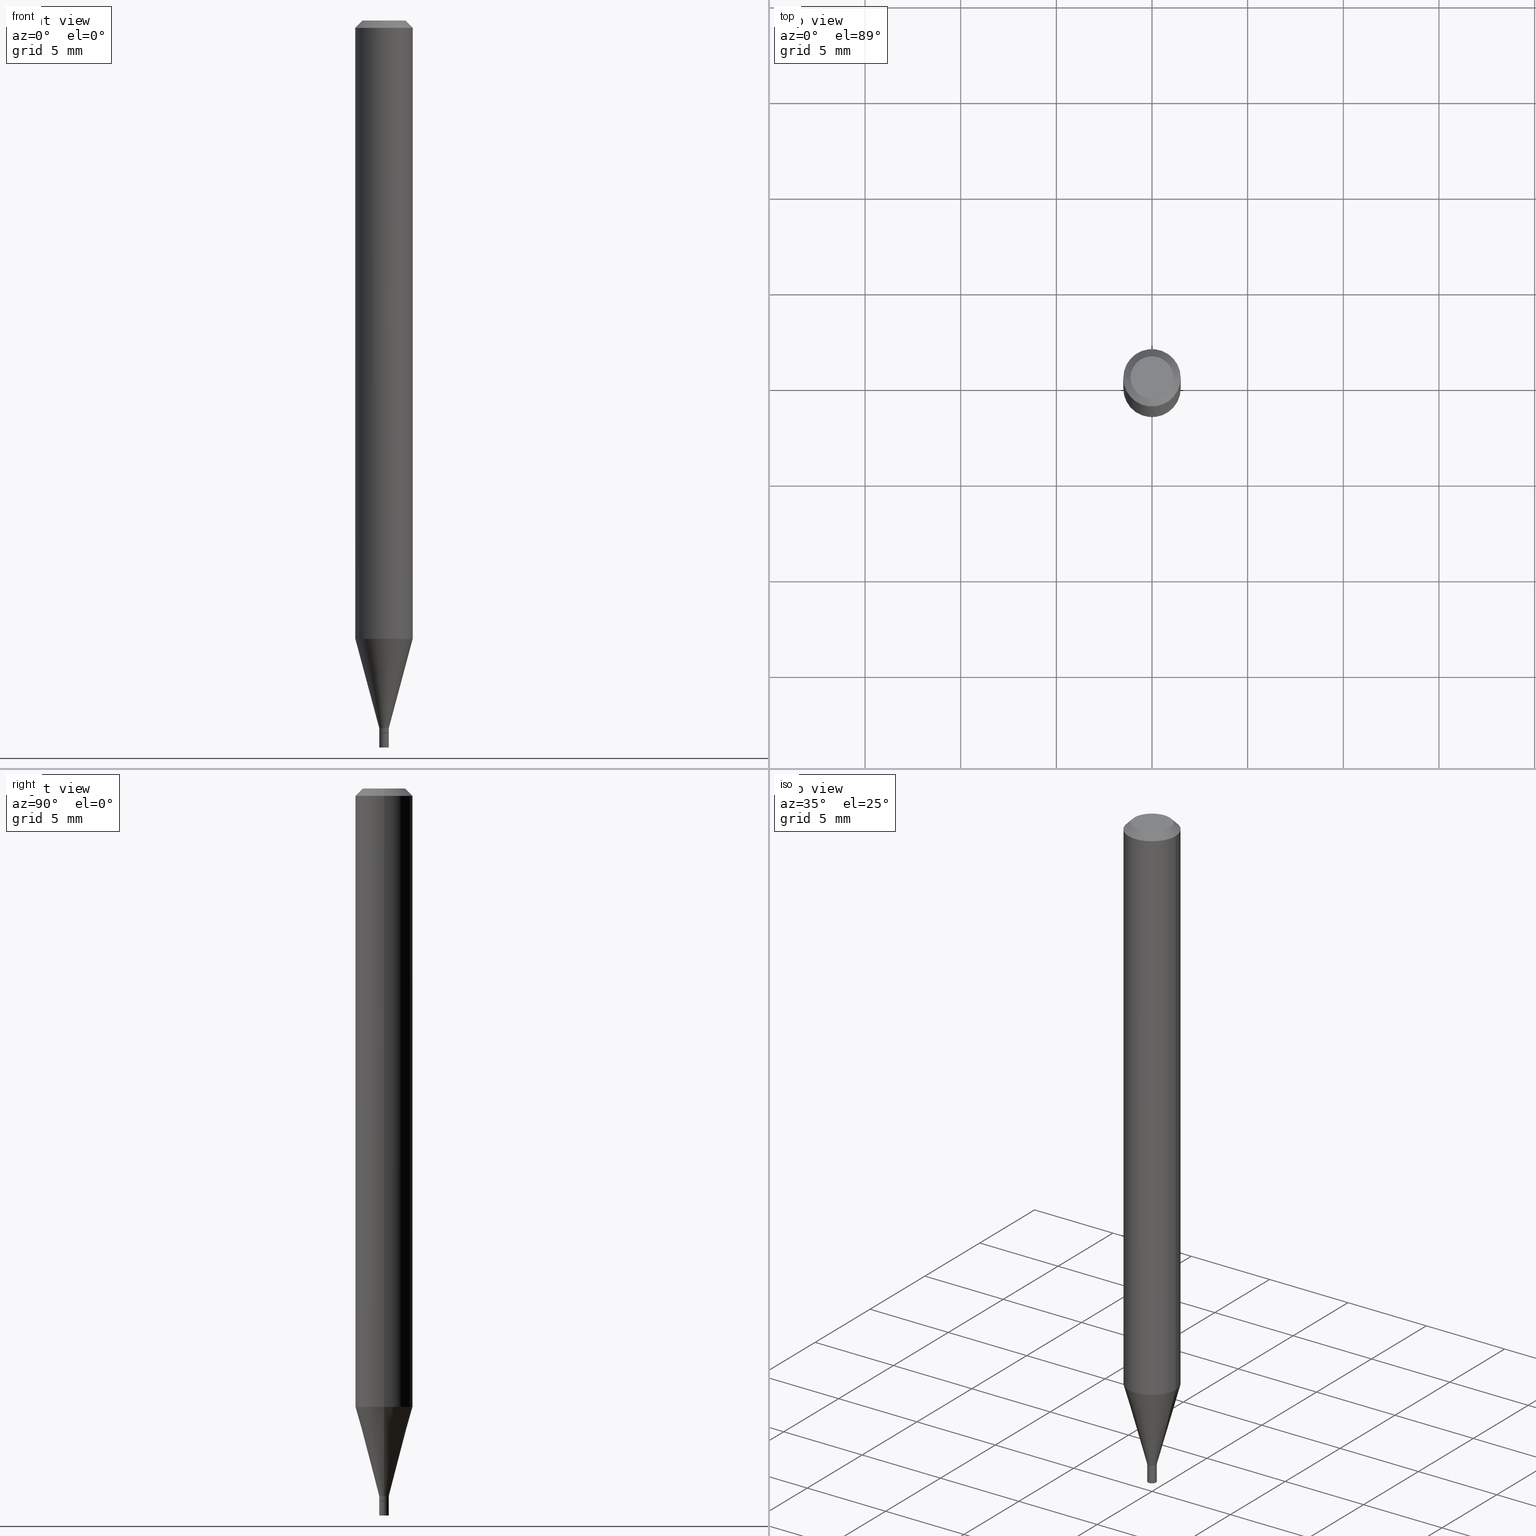
[diagram: canonical four-view strip — front | top / right | iso, engineering-drawing reading convention]
A machine part, canonical four-view strip (front | top / right | iso — engineering-drawing reading convention). The complete STEP part file that produces these views, byte-faithful:
ISO-10303-21;
HEADER;
FILE_DESCRIPTION (( 'STEP AP203' ),
    '1' );
FILE_NAME ('01804.STEP',
    '2024-03-20T01:25:20',
    ( '' ),
    ( '' ),
    'SwSTEP 2.0',
    'SolidWorks 2023',
    '' );
FILE_SCHEMA (( 'CONFIG_CONTROL_DESIGN' ));
ENDSEC;

DATA;
#1 = DIRECTION ( 'NONE',  ( -2.445468806185136597E-29, 3.491481338843145583E-15, 1.000000000000000000 ) ) ;
#2 = DIRECTION ( 'NONE',  ( -2.445468806185136597E-29, 3.491481338843145583E-15, 1.000000000000000000 ) ) ;
#3 = DIRECTION ( 'NONE',  ( 2.438088387897960049E-29, -3.491481338843145188E-15, -1.000000000000000000 ) ) ;
#4 = AXIS2_PLACEMENT_3D ( 'NONE', #145, #296, #348 ) ;
#5 = CC_DESIGN_SECURITY_CLASSIFICATION ( #21, ( #175 ) ) ;
#6 = CARTESIAN_POINT ( 'NONE',  ( 3.585301816748028874E-29, -5.118860790877935502E-15, -1.466099999999999959 ) ) ;
#7 = CARTESIAN_POINT ( 'NONE',  ( -0.009849999999999999381, 6.998845947236986391E-17, -4.845151063901081251E-31 ) ) ;
#8 = EDGE_CURVE ( 'NONE', #49, #388, #291, .T. ) ;
#9 = CARTESIAN_POINT ( 'NONE',  ( 0.05904999999999999832, -4.855194944695011199E-15, -1.272483100267611356 ) ) ;
#10 = ORIENTED_EDGE ( 'NONE', *, *, #57, .T. ) ;
#11 = CONICAL_SURFACE ( 'NONE', #284, 0.009349999999999998937, 0.7853981633974718157 ) ;
#12 = DIRECTION ( 'NONE',  ( -2.445468806185136597E-29, 3.491481338843145583E-15, 1.000000000000000000 ) ) ;
#13 = ORIENTED_EDGE ( 'NONE', *, *, #378, .F. ) ;
#14 = ADVANCED_FACE ( 'NONE', ( #106 ), #192, .T. ) ;
#15 = DIRECTION ( 'NONE',  ( -2.445468806185136597E-29, 3.491481338843145583E-15, 1.000000000000000000 ) ) ;
#16 = EDGE_LOOP ( 'NONE', ( #424, #60, #340, #282 ) ) ;
#17 = EDGE_CURVE ( 'NONE', #56, #173, #333, .T. ) ;
#18 = CARTESIAN_POINT ( 'NONE',  ( -0.05904999999999999832, 3.599717260347268549E-16, -0.01499999999999999944 ) ) ;
#19 = AXIS2_PLACEMENT_3D ( 'NONE', #417, #339, #88 ) ;
#20 = DIRECTION ( 'NONE',  ( -2.445468806185136597E-29, 3.491481338843145583E-15, 1.000000000000000000 ) ) ;
#21 = SECURITY_CLASSIFICATION ( '', '', #34 ) ;
#22 = DIMENSIONAL_EXPONENTS ( 1.000000000000000000, 0.000000000000000000, 0.000000000000000000, 0.000000000000000000, 0.000000000000000000, 0.000000000000000000, 0.000000000000000000 ) ;
#23 = DIRECTION ( 'NONE',  ( 1.000000000000000000, -6.982962677686229634E-15, 0.000000000000000000 ) ) ;
#24 = CC_DESIGN_PERSON_AND_ORGANIZATION_ASSIGNMENT ( #254, #442, ( #21 ) ) ;
#25 = FACE_OUTER_BOUND ( 'NONE', #278, .T. ) ;
#26 = ORIENTED_EDGE ( 'NONE', *, *, #314, .F. ) ;
#27 = CARTESIAN_POINT ( 'NONE',  ( 3.586524551151121115E-29, -5.120606531547357005E-15, -1.466599999999999904 ) ) ;
#28 = ORIENTED_EDGE ( 'NONE', *, *, #117, .T. ) ;
#29 = AXIS2_PLACEMENT_3D ( 'NONE', #457, #247, #395 ) ;
#30 = EDGE_LOOP ( 'NONE', ( #96, #272, #270, #66 ) ) ;
#31 = ADVANCED_FACE ( 'NONE', ( #171 ), #369, .T. ) ;
#32 = DIRECTION ( 'NONE',  ( -2.445468806185136597E-29, 3.491481338843145583E-15, 1.000000000000000000 ) ) ;
#33 = MANIFOLD_SOLID_BREP ( 'Body-Move/Copy2[2]', #359 ) ;
#34 = SECURITY_CLASSIFICATION_LEVEL ( 'unclassified' ) ;
#35 = CARTESIAN_POINT ( 'NONE',  ( 0.000000000000000000, 0.000000000000000000, 0.000000000000000000 ) ) ;
#36 = ADVANCED_FACE ( 'NONE', ( #38 ), #87, .T. ) ;
#37 = CIRCLE ( 'NONE', #433, 0.04404999999999999888 ) ;
#38 = FACE_OUTER_BOUND ( 'NONE', #464, .T. ) ;
#39 = APPROVAL ( #262, 'UNSPECIFIED' ) ;
#40 = PRODUCT_DEFINITION_SHAPE ( 'NONE', 'NONE',  #260 ) ;
#41 = CARTESIAN_POINT ( 'NONE',  ( -0.05904999999999999832, -4.023275513111297575E-15, -1.272483100267611356 ) ) ;
#42 = PERSON_AND_ORGANIZATION ( #305, #142 ) ;
#43 = CARTESIAN_POINT ( 'NONE',  ( 3.075995059520799729E-16, 0.04404999999999999888, 1.795592642476908520E-18 ) ) ;
#44 = AXIS2_PLACEMENT_3D ( 'NONE', #445, #1, #116 ) ;
#45 = CIRCLE ( 'NONE', #335, 0.009349999999999998937 ) ;
#46 = CARTESIAN_POINT ( 'NONE',  ( 0.009849999999999999381, -5.292387413418439267E-15, -1.496099999999999985 ) ) ;
#47 = CARTESIAN_POINT ( 'NONE',  ( 3.560847128686176768E-29, -5.083945977489503852E-15, -1.456099999999999728 ) ) ;
#48 = PLANE ( 'NONE',  #19 ) ;
#49 = VERTEX_POINT ( 'NONE', #41 ) ;
#50 = DIRECTION ( 'NONE',  ( -2.445468806185136597E-29, 3.491481338843145583E-15, 1.000000000000000000 ) ) ;
#51 = CC_DESIGN_PERSON_AND_ORGANIZATION_ASSIGNMENT ( #438, #322, ( #260 ) ) ;
#52 = CARTESIAN_POINT ( 'NONE',  ( 0.000000000000000000, 0.000000000000000000, 0.000000000000000000 ) ) ;
#53 = ORIENTED_EDGE ( 'NONE', *, *, #337, .T. ) ;
#54 = CARTESIAN_POINT ( 'NONE',  ( 0.05904999999999999832, -4.574846268510561447E-16, -0.01499999999999999944 ) ) ;
#55 = ADVANCED_BREP_SHAPE_REPRESENTATION ( '01804', ( #351, #33, #374 ), #425 ) ;
#56 = VERTEX_POINT ( 'NONE', #46 ) ;
#57 = EDGE_CURVE ( 'NONE', #105, #462, #214, .T. ) ;
#58 = FACE_OUTER_BOUND ( 'NONE', #134, .T. ) ;
#59 = AXIS2_PLACEMENT_3D ( 'NONE', #392, #352, #65 ) ;
#60 = ORIENTED_EDGE ( 'NONE', *, *, #345, .T. ) ;
#61 = MECHANICAL_CONTEXT ( 'NONE', #264, 'mechanical' ) ;
#62 = ORIENTED_EDGE ( 'NONE', *, *, #356, .T. ) ;
#63 = CARTESIAN_POINT ( 'NONE',  ( 0.04404999999999999888, -3.798447818264454656E-16, 3.111906912370373467E-16 ) ) ;
#64 = ORIENTED_EDGE ( 'NONE', *, *, #314, .T. ) ;
#65 = DIRECTION ( 'NONE',  ( 1.000000000000000000, -6.982962677686266711E-15, 0.000000000000000000 ) ) ;
#66 = ORIENTED_EDGE ( 'NONE', *, *, #253, .F. ) ;
#67 = ADVANCED_FACE ( 'NONE', ( #407 ), #372, .T. ) ;
#68 = ORIENTED_EDGE ( 'NONE', *, *, #102, .F. ) ;
#69 = APPROVAL_STATUS ( 'not_yet_approved' ) ;
#70 = CARTESIAN_POINT ( 'NONE',  ( -0.009849999999999999381, -5.102117421822923284E-15, -1.466599999999999904 ) ) ;
#71 = EDGE_CURVE ( 'NONE', #197, #399, #114, .T. ) ;
#72 = CARTESIAN_POINT ( 'NONE',  ( 3.668203209277705088E-31, -5.237222008264718399E-17, -0.01499999999999999944 ) ) ;
#73 = COORDINATED_UNIVERSAL_TIME_OFFSET ( 5, 0, .BEHIND. ) ;
#74 = CARTESIAN_POINT ( 'NONE',  ( -0.009349999999999998937, -5.054170785753787855E-15, -1.466599999999999904 ) ) ;
#75 = APPROVAL_DATE_TIME ( #408, #328 ) ;
#76 = CARTESIAN_POINT ( 'NONE',  ( 3.658665880933582389E-29, -5.223605231043229660E-15, -1.496099999999999985 ) ) ;
#77 = CARTESIAN_POINT ( 'NONE',  ( 0.009849999999999924788, -5.152728159864713460E-15, -1.456099999999999728 ) ) ;
#78 = AXIS2_PLACEMENT_3D ( 'NONE', #72, #301, #223 ) ;
#79 = LOCAL_TIME ( 21, 25, 20.00000000000000000, #73 ) ;
#80 = CC_DESIGN_PERSON_AND_ORGANIZATION_ASSIGNMENT ( #131, #241, ( #236 ) ) ;
#81 = LINE ( 'NONE', #231, #360 ) ;
#82 = ADVANCED_FACE ( 'NONE', ( #224 ), #258, .T. ) ;
#83 = CARTESIAN_POINT ( 'NONE',  ( 3.585301816748028874E-29, -5.118860790877935502E-15, -1.466099999999999959 ) ) ;
#84 = EDGE_LOOP ( 'NONE', ( #363, #216 ) ) ;
#85 = CARTESIAN_POINT ( 'NONE',  ( -0.05904999999999999832, 4.195754854663391478E-16, -2.904631170795521892E-30 ) ) ;
#86 = EDGE_CURVE ( 'NONE', #173, #56, #412, .T. ) ;
#87 = CONICAL_SURFACE ( 'NONE', #276, 0.009849999999999924788, 0.2617993877991501850 ) ;
#88 = DIRECTION ( 'NONE',  ( -1.000000000000000000, 6.982962677686265922E-15, -4.876176775795935793E-29 ) ) ;
#89 = DIRECTION ( 'NONE',  ( -2.445468806185136597E-29, 3.491481338843145583E-15, 1.000000000000000000 ) ) ;
#90 = VERTEX_POINT ( 'NONE', #70 ) ;
#91 = ADVANCED_FACE ( 'NONE', ( #185 ), #150, .T. ) ;
#92 = PLANE ( 'NONE',  #120 ) ;
#93 = VERTEX_POINT ( 'NONE', #109 ) ;
#94 = CIRCLE ( 'NONE', #368, 0.05904999999999999832 ) ;
#95 = LENGTH_MEASURE_WITH_UNIT ( LENGTH_MEASURE( 0.02539999999999999897 ), #289 );
#96 = ORIENTED_EDGE ( 'NONE', *, *, #230, .F. ) ;
#97 = LINE ( 'NONE', #245, #151 ) ;
#98 = ADVANCED_FACE ( 'NONE', ( #411 ), #147, .F. ) ;
#99 = ORIENTED_EDGE ( 'NONE', *, *, #152, .T. ) ;
#100 = DIRECTION ( 'NONE',  ( 1.000000000000000000, -6.982962677686229634E-15, 0.000000000000000000 ) ) ;
#101 = ORIENTED_EDGE ( 'NONE', *, *, #158, .F. ) ;
#102 = EDGE_CURVE ( 'NONE', #210, #132, #444, .T. ) ;
#103 = DIRECTION ( 'NONE',  ( 1.000000000000000000, 0.000000000000000000, 0.000000000000000000 ) ) ;
#104 = AXIS2_PLACEMENT_3D ( 'NONE', #317, #32, #435 ) ;
#105 = VERTEX_POINT ( 'NONE', #336 ) ;
#106 = FACE_OUTER_BOUND ( 'NONE', #204, .T. ) ;
#107 = CC_DESIGN_PERSON_AND_ORGANIZATION_ASSIGNMENT ( #144, #329, ( #175 ) ) ;
#108 = COORDINATED_UNIVERSAL_TIME_OFFSET ( 5, 0, .BEHIND. ) ;
#109 = CARTESIAN_POINT ( 'NONE',  ( 0.009849999999999924788, -5.152728159864713460E-15, -1.456099999999999728 ) ) ;
#110 = DIRECTION ( 'NONE',  ( -0.7071067811865642261, 7.493145998870414114E-15, 0.7071067811865309194 ) ) ;
#111 = AXIS2_PLACEMENT_3D ( 'NONE', #248, #461, #179 ) ;
#112 = AXIS2_PLACEMENT_3D ( 'NONE', #313, #15, #266 ) ;
#113 = APPROVAL_ROLE ( '' ) ;
#114 = LINE ( 'NONE', #74, #466 ) ;
#115 = APPROVAL_ROLE ( '' ) ;
#116 = DIRECTION ( 'NONE',  ( 1.000000000000000000, -6.982962677686276177E-15, 0.000000000000000000 ) ) ;
#117 = EDGE_CURVE ( 'NONE', #132, #399, #454, .T. ) ;
#118 = DIRECTION ( 'NONE',  ( 1.000000000000000000, -6.982962677686276177E-15, 0.000000000000000000 ) ) ;
#119 = AXIS2_PLACEMENT_3D ( 'NONE', #321, #353, #23 ) ;
#120 = AXIS2_PLACEMENT_3D ( 'NONE', #243, #170, #387 ) ;
#121 = EDGE_CURVE ( 'NONE', #210, #197, #249, .T. ) ;
#122 = FACE_OUTER_BOUND ( 'NONE', #211, .T. ) ;
#123 = EDGE_CURVE ( 'NONE', #93, #388, #265, .T. ) ;
#124 = CARTESIAN_POINT ( 'NONE',  ( 0.009349999999999998937, -5.185897232583723605E-15, -1.466599999999999904 ) ) ;
#125 = ORIENTED_EDGE ( 'NONE', *, *, #152, .F. ) ;
#126 = FACE_OUTER_BOUND ( 'NONE', #201, .T. ) ;
#127 = ORIENTED_EDGE ( 'NONE', *, *, #117, .F. ) ;
#128 = AXIS2_PLACEMENT_3D ( 'NONE', #362, #172, #100 ) ;
#129 = CARTESIAN_POINT ( 'NONE',  ( 0.05904999999999999832, -4.647161662000212105E-16, -0.01499999999999999944 ) ) ;
#130 = ORIENTED_EDGE ( 'NONE', *, *, #123, .F. ) ;
#131 = PERSON_AND_ORGANIZATION ( #305, #142 ) ;
#132 = VERTEX_POINT ( 'NONE', #375 ) ;
#133 = EDGE_CURVE ( 'NONE', #173, #90, #220, .T. ) ;
#134 = EDGE_LOOP ( 'NONE', ( #28, #391, #169, #13 ) ) ;
#135 = AXIS2_PLACEMENT_3D ( 'NONE', #47, #89, #239 ) ;
#136 = ORIENTED_EDGE ( 'NONE', *, *, #123, .T. ) ;
#137 = ORIENTED_EDGE ( 'NONE', *, *, #186, .T. ) ;
#138 = APPLICATION_PROTOCOL_DEFINITION ( 'international standard', 'config_control_design', 1994, #264 ) ;
#139 = VERTEX_POINT ( 'NONE', #154 ) ;
#140 = DATE_TIME_ROLE ( 'classification_date' ) ;
#141 = ORIENTED_EDGE ( 'NONE', *, *, #86, .T. ) ;
#142 = ORGANIZATION ( 'UNSPECIFIED', 'UNSPECIFIED', '' ) ;
#143 = ADVANCED_FACE ( 'NONE', ( #304 ), #446, .T. ) ;
#144 = PERSON_AND_ORGANIZATION ( #305, #142 ) ;
#145 = CARTESIAN_POINT ( 'NONE',  ( 3.560847128686176768E-29, -5.083945977489503852E-15, -1.456099999999999728 ) ) ;
#146 = COORDINATED_UNIVERSAL_TIME_OFFSET ( 5, 0, .BEHIND. ) ;
#147 = PLANE ( 'NONE',  #324 ) ;
#148 = DATE_AND_TIME ( #187, #418 ) ;
#149 = DIRECTION ( 'NONE',  ( -1.000000000000000000, 6.982962677686265922E-15, -4.876176775795935793E-29 ) ) ;
#150 = CONICAL_SURFACE ( 'NONE', #397, 0.009849999999999924788, 0.2617993877991501850 ) ;
#151 = VECTOR ( 'NONE', #209, 39.37007874015748143 ) ;
#152 = EDGE_CURVE ( 'NONE', #139, #93, #380, .T. ) ;
#153 = DIRECTION ( 'NONE',  ( -2.445468806185136597E-29, 3.491481338843145583E-15, 1.000000000000000000 ) ) ;
#154 = CARTESIAN_POINT ( 'NONE',  ( -0.009849999999999924788, -4.518616515564216084E-15, -1.456099999999999728 ) ) ;
#155 = LINE ( 'NONE', #85, #307 ) ;
#156 = EDGE_LOOP ( 'NONE', ( #428, #141, #344, #431 ) ) ;
#157 = VECTOR ( 'NONE', #234, 39.37007874015748143 ) ;
#158 = EDGE_CURVE ( 'NONE', #139, #49, #455, .T. ) ;
#159 = VECTOR ( 'NONE', #167, 39.37007874015748143 ) ;
#160 = DIRECTION ( 'NONE',  ( 1.000000000000000000, -6.982962677686276177E-15, 0.000000000000000000 ) ) ;
#161 = ORIENTED_EDGE ( 'NONE', *, *, #133, .T. ) ;
#162 = CARTESIAN_POINT ( 'NONE',  ( -0.009349999999999998937, -5.051521558579676654E-15, -1.466599999999999904 ) ) ;
#163 = ORIENTED_EDGE ( 'NONE', *, *, #71, .F. ) ;
#164 = CYLINDRICAL_SURFACE ( 'NONE', #440, 0.009849999999999999381 ) ;
#165 = VECTOR ( 'NONE', #273, 39.37007874015748143 ) ;
#166 = LOCAL_TIME ( 21, 25, 20.00000000000000000, #108 ) ;
#167 = DIRECTION ( 'NONE',  ( 0.7071067811865402453, -7.319954787623232380E-15, -0.7071067811865547892 ) ) ;
#168 = EDGE_CURVE ( 'NONE', #105, #420, #306, .T. ) ;
#169 = ORIENTED_EDGE ( 'NONE', *, *, #280, .F. ) ;
#170 = DIRECTION ( 'NONE',  ( -2.438088387897960049E-29, 3.491481338843145188E-15, 1.000000000000000000 ) ) ;
#171 = FACE_OUTER_BOUND ( 'NONE', #288, .T. ) ;
#172 = DIRECTION ( 'NONE',  ( -2.445468806185136597E-29, 3.491481338843145583E-15, 1.000000000000000000 ) ) ;
#173 = VERTEX_POINT ( 'NONE', #237 ) ;
#174 = CIRCLE ( 'NONE', #350, 0.009849999999999999381 ) ;
#175 = PRODUCT_DEFINITION_FORMATION_WITH_SPECIFIED_SOURCE ( 'ANY', '', #236, .NOT_KNOWN. ) ;
#176 = CYLINDRICAL_SURFACE ( 'NONE', #449, 0.009849999999999921318 ) ;
#177 = VERTEX_POINT ( 'NONE', #129 ) ;
#178 =( CONVERSION_BASED_UNIT ( 'INCH', #95 ) LENGTH_UNIT ( ) NAMED_UNIT ( #22 ) );
#179 = DIRECTION ( 'NONE',  ( -1.000000000000000000, 6.982962677686266711E-15, 0.000000000000000000 ) ) ;
#180 = CARTESIAN_POINT ( 'NONE',  ( 0.009849999999999999381, -5.189388713922566612E-15, -1.466599999999999904 ) ) ;
#181 = ORIENTED_EDGE ( 'NONE', *, *, #456, .F. ) ;
#182 = AXIS2_PLACEMENT_3D ( 'NONE', #188, #194, #439 ) ;
#183 = DIRECTION ( 'NONE',  ( 1.000000000000000000, -6.982962677686266711E-15, 4.876176775795936353E-29 ) ) ;
#184 = CC_DESIGN_APPROVAL ( #39, ( #260 ) ) ;
#185 = FACE_OUTER_BOUND ( 'NONE', #458, .T. ) ;
#186 = EDGE_CURVE ( 'NONE', #90, #396, #174, .T. ) ;
#187 = CALENDAR_DATE ( 2024, 19, 3 ) ;
#188 = CARTESIAN_POINT ( 'NONE',  ( -7.610071281953593191E-45, 1.086516491275806664E-30, 3.111906912370349308E-16 ) ) ;
#189 = ADVANCED_FACE ( 'NONE', ( #450 ), #164, .T. ) ;
#190 = SHAPE_DEFINITION_REPRESENTATION ( #40, #55 ) ;
#191 = CARTESIAN_POINT ( 'NONE',  ( 0.009349999999999998937, -5.185897232583723605E-15, -1.466599999999999904 ) ) ;
#192 = CONICAL_SURFACE ( 'NONE', #111, 0.05904999999999999832, 0.7853981633974380649 ) ;
#193 = CONICAL_SURFACE ( 'NONE', #343, 0.009349999999999998937, 0.7853981633974718157 ) ;
#194 = DIRECTION ( 'NONE',  ( -2.445468806185136597E-29, 3.491481338843145583E-15, 1.000000000000000000 ) ) ;
#195 = CARTESIAN_POINT ( 'NONE',  ( 3.577647911566500614E-29, -5.339627574433336753E-15, -1.496099999999999985 ) ) ;
#196 = EDGE_CURVE ( 'NONE', #462, #105, #37, .T. ) ;
#197 = VERTEX_POINT ( 'NONE', #162 ) ;
#198 = DIRECTION ( 'NONE',  ( 1.000000000000000000, -6.982962677686265922E-15, 4.876176775795935232E-29 ) ) ;
#199 = AXIS2_PLACEMENT_3D ( 'NONE', #409, #2, #299 ) ;
#200 = LINE ( 'NONE', #54, #159 ) ;
#201 = EDGE_LOOP ( 'NONE', ( #275, #137 ) ) ;
#202 = ADVANCED_FACE ( 'NONE', ( #232 ), #452, .F. ) ;
#203 = CARTESIAN_POINT ( 'NONE',  ( 3.586524551151121115E-29, -5.120606531547357005E-15, -1.466599999999999904 ) ) ;
#204 = EDGE_LOOP ( 'NONE', ( #252, #244, #422, #246 ) ) ;
#205 = EDGE_CURVE ( 'NONE', #388, #177, #349, .T. ) ;
#206 = DIRECTION ( 'NONE',  ( -0.7071067811865402453, 2.468850131082180541E-15, -0.7071067811865547892 ) ) ;
#207 = AXIS2_PLACEMENT_3D ( 'NONE', #263, #370, #183 ) ;
#208 = APPROVAL_PERSON_ORGANIZATION ( #295, #328, #115 ) ;
#209 = DIRECTION ( 'NONE',  ( -2.445468806185136877E-29, 3.491481338843145188E-15, 1.000000000000000000 ) ) ;
#210 = VERTEX_POINT ( 'NONE', #124 ) ;
#211 = EDGE_LOOP ( 'NONE', ( #384, #320, #127, #68 ) ) ;
#212 =( NAMED_UNIT ( * ) PLANE_ANGLE_UNIT ( ) SI_UNIT ( $, .RADIAN. ) );
#213 = ORIENTED_EDGE ( 'NONE', *, *, #378, .T. ) ;
#214 = CIRCLE ( 'NONE', #182, 0.04404999999999999888 ) ;
#215 = CC_DESIGN_APPROVAL ( #242, ( #21 ) ) ;
#216 = ORIENTED_EDGE ( 'NONE', *, *, #337, .F. ) ;
#217 =( NAMED_UNIT ( * ) SI_UNIT ( $, .STERADIAN. ) SOLID_ANGLE_UNIT ( ) );
#218 = ORIENTED_EDGE ( 'NONE', *, *, #459, .F. ) ;
#219 = DATE_AND_TIME ( #259, #79 ) ;
#220 = LINE ( 'NONE', #7, #448 ) ;
#221 = DATE_AND_TIME ( #331, #166 ) ;
#222 = CIRCLE ( 'NONE', #135, 0.009849999999999924788 ) ;
#223 = DIRECTION ( 'NONE',  ( -1.000000000000000000, 6.982962677686266711E-15, 0.000000000000000000 ) ) ;
#224 = FACE_OUTER_BOUND ( 'NONE', #16, .T. ) ;
#225 = APPROVAL_ROLE ( '' ) ;
#226 = CARTESIAN_POINT ( 'NONE',  ( 3.560847128686176768E-29, -5.083945977489503852E-15, -1.456099999999999728 ) ) ;
#227 = DIRECTION ( 'NONE',  ( 0.2588190451025214611, 1.565188264969620982E-15, 0.9659258262890679791 ) ) ;
#228 = AXIS2_PLACEMENT_3D ( 'NONE', #195, #309, #451 ) ;
#229 = CC_DESIGN_APPROVAL ( #328, ( #175 ) ) ;
#230 = EDGE_CURVE ( 'NONE', #49, #420, #155, .T. ) ;
#231 = CARTESIAN_POINT ( 'NONE',  ( 0.009849999999999921318, -6.878218237520917578E-17, 4.803034124158958949E-31 ) ) ;
#232 = FACE_OUTER_BOUND ( 'NONE', #290, .T. ) ;
#233 = EDGE_LOOP ( 'NONE', ( #218, #64, #213, #125 ) ) ;
#234 = DIRECTION ( 'NONE',  ( -2.445468806185136877E-29, 3.491481338843145188E-15, 1.000000000000000000 ) ) ;
#235 = CIRCLE ( 'NONE', #128, 0.009849999999999999381 ) ;
#236 = PRODUCT ( '01804', '01804', '', ( #61 ) ) ;
#237 = CARTESIAN_POINT ( 'NONE',  ( -0.009849999999999999381, -5.102117421822923284E-15, -1.496099999999999985 ) ) ;
#238 = ADVANCED_FACE ( 'NONE', ( #126 ), #48, .F. ) ;
#239 = DIRECTION ( 'NONE',  ( 1.000000000000000000, -6.982962677686282488E-15, 0.000000000000000000 ) ) ;
#240 = ORIENTED_EDGE ( 'NONE', *, *, #158, .T. ) ;
#241 = PERSON_AND_ORGANIZATION_ROLE ( 'design_owner' ) ;
#242 = APPROVAL ( #69, 'UNSPECIFIED' ) ;
#243 = CARTESIAN_POINT ( 'NONE',  ( 3.586524551151121115E-29, -5.120606531547357005E-15, -1.466599999999999904 ) ) ;
#244 = ORIENTED_EDGE ( 'NONE', *, *, #57, .F. ) ;
#245 = CARTESIAN_POINT ( 'NONE',  ( 0.009849999999999999381, -6.878218237520971813E-17, 4.803034124158995733E-31 ) ) ;
#246 = ORIENTED_EDGE ( 'NONE', *, *, #253, .T. ) ;
#247 = DIRECTION ( 'NONE',  ( -2.445468806185136597E-29, 3.491481338843145583E-15, 1.000000000000000000 ) ) ;
#248 = CARTESIAN_POINT ( 'NONE',  ( 3.668203209277705088E-31, -5.237222008264718399E-17, -0.01499999999999999944 ) ) ;
#249 = CIRCLE ( 'NONE', #44, 0.009349999999999998937 ) ;
#250 = VECTOR ( 'NONE', #357, 39.37007874015748143 ) ;
#251 = DIRECTION ( 'NONE',  ( -2.445468806185136597E-29, 3.491481338843145583E-15, 1.000000000000000000 ) ) ;
#252 = ORIENTED_EDGE ( 'NONE', *, *, #345, .F. ) ;
#253 = EDGE_CURVE ( 'NONE', #420, #177, #94, .T. ) ;
#254 = PERSON_AND_ORGANIZATION ( #305, #142 ) ;
#255 = DIRECTION ( 'NONE',  ( -2.445468806185136597E-29, 3.491481338843145583E-15, 1.000000000000000000 ) ) ;
#256 = CALENDAR_DATE ( 2024, 19, 3 ) ;
#257 = DIRECTION ( 'NONE',  ( 1.000000000000000000, -6.982962677686282488E-15, 0.000000000000000000 ) ) ;
#258 = CONICAL_SURFACE ( 'NONE', #78, 0.05904999999999999832, 0.7853981633974380649 ) ;
#259 = CALENDAR_DATE ( 2024, 19, 3 ) ;
#260 = PRODUCT_DEFINITION ( 'UNKNOWN', '', #175, #361 ) ;
#261 = DIRECTION ( 'NONE',  ( -2.445468806185136597E-29, 3.491481338843145583E-15, 1.000000000000000000 ) ) ;
#262 = APPROVAL_STATUS ( 'not_yet_approved' ) ;
#263 = CARTESIAN_POINT ( 'NONE',  ( 0.000000000000000000, 0.000000000000000000, 0.000000000000000000 ) ) ;
#264 = APPLICATION_CONTEXT ( 'configuration controlled 3d designs of mechanical parts and assemblies' ) ;
#265 = LINE ( 'NONE', #77, #389 ) ;
#266 = DIRECTION ( 'NONE',  ( 1.000000000000000000, -6.982962677686273021E-15, 0.000000000000000000 ) ) ;
#267 = AXIS2_PLACEMENT_3D ( 'NONE', #76, #332, #327 ) ;
#268 = CIRCLE ( 'NONE', #59, 0.05904999999999999832 ) ;
#269 = CARTESIAN_POINT ( 'NONE',  ( 0.05904999999999999832, -4.123439461173740327E-16, 2.879382386107500220E-30 ) ) ;
#270 = ORIENTED_EDGE ( 'NONE', *, *, #205, .T. ) ;
#271 = CARTESIAN_POINT ( 'NONE',  ( -0.009849999999999924788, -5.013957518017134593E-15, -1.456099999999999728 ) ) ;
#272 = ORIENTED_EDGE ( 'NONE', *, *, #8, .T. ) ;
#273 = DIRECTION ( 'NONE',  ( -0.2588190451025214611, 5.211531920934550253E-15, 0.9659258262890679791 ) ) ;
#274 = ADVANCED_FACE ( 'NONE', ( #122 ), #11, .T. ) ;
#275 = ORIENTED_EDGE ( 'NONE', *, *, #421, .T. ) ;
#276 = AXIS2_PLACEMENT_3D ( 'NONE', #226, #261, #257 ) ;
#277 = DIRECTION ( 'NONE',  ( 1.000000000000000000, -6.982962677686266711E-15, 0.000000000000000000 ) ) ;
#278 = EDGE_LOOP ( 'NONE', ( #163, #53, #358, #26 ) ) ;
#279 = CARTESIAN_POINT ( 'NONE',  ( -0.05904999999999999832, -1.828036123863802383E-15, -0.01499999999999999944 ) ) ;
#280 = EDGE_CURVE ( 'NONE', #93, #139, #222, .T. ) ;
#281 = DIRECTION ( 'NONE',  ( 1.000000000000000000, -6.982962677686276177E-15, 0.000000000000000000 ) ) ;
#282 = ORIENTED_EDGE ( 'NONE', *, *, #168, .F. ) ;
#283 = AXIS2_PLACEMENT_3D ( 'NONE', #6, #153, #303 ) ;
#284 = AXIS2_PLACEMENT_3D ( 'NONE', #419, #342, #160 ) ;
#285 = DIRECTION ( 'NONE',  ( 1.000000000000000000, -6.982962677686266711E-15, 4.876176775795936353E-29 ) ) ;
#286 = ORIENTED_EDGE ( 'NONE', *, *, #280, .T. ) ;
#287 = FACE_OUTER_BOUND ( 'NONE', #84, .T. ) ;
#288 = EDGE_LOOP ( 'NONE', ( #386, #161, #393, #430 ) ) ;
#289 =( LENGTH_UNIT ( ) NAMED_UNIT ( * ) SI_UNIT ( $, .METRE. ) );
#290 = EDGE_LOOP ( 'NONE', ( #315, #355 ) ) ;
#291 = CIRCLE ( 'NONE', #104, 0.05904999999999999832 ) ;
#292 = LOCAL_TIME ( 21, 25, 20.00000000000000000, #146 ) ;
#293 = APPROVAL_DATE_TIME ( #219, #242 ) ;
#294 = EDGE_LOOP ( 'NONE', ( #62, #453, #181, #365 ) ) ;
#295 = PERSON_AND_ORGANIZATION ( #305, #142 ) ;
#296 = DIRECTION ( 'NONE',  ( -2.445468806185136597E-29, 3.491481338843145583E-15, 1.000000000000000000 ) ) ;
#297 = CC_DESIGN_DATE_AND_TIME_ASSIGNMENT ( #401, #140, ( #21 ) ) ;
#298 = APPROVAL_DATE_TIME ( #148, #39 ) ;
#299 = DIRECTION ( 'NONE',  ( 1.000000000000000000, -6.982962677686265922E-15, 4.876176775795935232E-29 ) ) ;
#300 = PERSON_AND_ORGANIZATION_ROLE ( 'creator' ) ;
#301 = DIRECTION ( 'NONE',  ( 2.445468806185136597E-29, -3.491481338843145583E-15, -1.000000000000000000 ) ) ;
#302 = APPROVAL_STATUS ( 'not_yet_approved' ) ;
#303 = DIRECTION ( 'NONE',  ( 1.000000000000000000, -6.982962677686285643E-15, 0.000000000000000000 ) ) ;
#304 = FACE_OUTER_BOUND ( 'NONE', #30, .T. ) ;
#305 = PERSON ( 'UNSPECIFIED', 'UNSPECIFIED', 'UNSPECIFIED', ('UNSPECIFIED'), ('UNSPECIFIED'), ('UNSPECIFIED') ) ;
#306 = LINE ( 'NONE', #18, #341 ) ;
#307 = VECTOR ( 'NONE', #310, 39.37007874015748143 ) ;
#308 = DIRECTION ( 'NONE',  ( 1.000000000000000000, -6.982962677686285643E-15, 0.000000000000000000 ) ) ;
#309 = DIRECTION ( 'NONE',  ( -2.438088387897960049E-29, 3.491481338843145188E-15, 1.000000000000000000 ) ) ;
#310 = DIRECTION ( 'NONE',  ( -2.445468806185136877E-29, 3.491481338843145188E-15, 1.000000000000000000 ) ) ;
#311 = APPLICATION_CONTEXT ( 'configuration controlled 3d designs of mechanical parts and assemblies' ) ;
#312 = APPROVAL_PERSON_ORGANIZATION ( #436, #39, #225 ) ;
#313 = CARTESIAN_POINT ( 'NONE',  ( 3.111817728102196803E-29, -4.442850998577635490E-15, -1.272483100267611356 ) ) ;
#314 = EDGE_CURVE ( 'NONE', #399, #132, #405, .T. ) ;
#315 = ORIENTED_EDGE ( 'NONE', *, *, #17, .F. ) ;
#316 = CYLINDRICAL_SURFACE ( 'NONE', #29, 0.009849999999999921318 ) ;
#317 = CARTESIAN_POINT ( 'NONE',  ( 3.111817728102196803E-29, -4.442850998577635490E-15, -1.272483100267611356 ) ) ;
#318 = AXIS2_PLACEMENT_3D ( 'NONE', #35, #255, #402 ) ;
#319 = AXIS2_PLACEMENT_3D ( 'NONE', #83, #20, #308 ) ;
#320 = ORIENTED_EDGE ( 'NONE', *, *, #71, .T. ) ;
#321 = CARTESIAN_POINT ( 'NONE',  ( 3.658665880933582389E-29, -5.223605231043229660E-15, -1.496099999999999985 ) ) ;
#322 = PERSON_AND_ORGANIZATION_ROLE ( 'creator' ) ;
#323 = ORIENTED_EDGE ( 'NONE', *, *, #356, .F. ) ;
#324 = AXIS2_PLACEMENT_3D ( 'NONE', #43, #3, #149 ) ;
#325 = CIRCLE ( 'NONE', #112, 0.05904999999999999832 ) ;
#326 = COORDINATED_UNIVERSAL_TIME_OFFSET ( 5, 0, .BEHIND. ) ;
#327 = DIRECTION ( 'NONE',  ( 1.000000000000000000, -6.982962677686229634E-15, 0.000000000000000000 ) ) ;
#328 = APPROVAL ( #302, 'UNSPECIFIED' ) ;
#329 = PERSON_AND_ORGANIZATION_ROLE ( 'design_supplier' ) ;
#330 = DIRECTION ( 'NONE',  ( -2.445468806185136597E-29, 3.491481338843145583E-15, 1.000000000000000000 ) ) ;
#331 = CALENDAR_DATE ( 2024, 19, 3 ) ;
#332 = DIRECTION ( 'NONE',  ( -2.445468806185136597E-29, 3.491481338843145583E-15, 1.000000000000000000 ) ) ;
#333 = CIRCLE ( 'NONE', #119, 0.009849999999999999381 ) ;
#334 = DATE_TIME_ROLE ( 'creation_date' ) ;
#335 = AXIS2_PLACEMENT_3D ( 'NONE', #381, #385, #118 ) ;
#336 = CARTESIAN_POINT ( 'NONE',  ( -0.04404999999999999888, 3.337856159934040055E-16, 3.111906912370327122E-16 ) ) ;
#337 = EDGE_CURVE ( 'NONE', #197, #210, #45, .T. ) ;
#338 = DIRECTION ( 'NONE',  ( -2.445468806185136877E-29, 3.491481338843145188E-15, 1.000000000000000000 ) ) ;
#339 = DIRECTION ( 'NONE',  ( 2.438088387897960049E-29, -3.491481338843145188E-15, -1.000000000000000000 ) ) ;
#340 = ORIENTED_EDGE ( 'NONE', *, *, #456, .T. ) ;
#341 = VECTOR ( 'NONE', #206, 39.37007874015748143 ) ;
#342 = DIRECTION ( 'NONE',  ( -2.445468806185136597E-29, 3.491481338843145583E-15, 1.000000000000000000 ) ) ;
#343 = AXIS2_PLACEMENT_3D ( 'NONE', #27, #251, #281 ) ;
#344 = ORIENTED_EDGE ( 'NONE', *, *, #447, .T. ) ;
#345 = EDGE_CURVE ( 'NONE', #462, #177, #200, .T. ) ;
#346 = CARTESIAN_POINT ( 'NONE',  ( -7.610071281953593191E-45, 1.086516491275806664E-30, 3.111906912370349308E-16 ) ) ;
#347 = EDGE_LOOP ( 'NONE', ( #10, #463 ) ) ;
#348 = DIRECTION ( 'NONE',  ( 1.000000000000000000, -6.982962677686282488E-15, 0.000000000000000000 ) ) ;
#349 = LINE ( 'NONE', #269, #157 ) ;
#350 = AXIS2_PLACEMENT_3D ( 'NONE', #203, #416, #377 ) ;
#351 = MANIFOLD_SOLID_BREP ( 'Body-Move/Copy2[1]', #432 ) ;
#352 = DIRECTION ( 'NONE',  ( -2.445468806185136597E-29, 3.491481338843145583E-15, 1.000000000000000000 ) ) ;
#353 = DIRECTION ( 'NONE',  ( -2.445468806185136597E-29, 3.491481338843145583E-15, 1.000000000000000000 ) ) ;
#354 = DIRECTION ( 'NONE',  ( 0.000000000000000000, 0.000000000000000000, 1.000000000000000000 ) ) ;
#355 = ORIENTED_EDGE ( 'NONE', *, *, #86, .F. ) ;
#356 = EDGE_CURVE ( 'NONE', #388, #49, #325, .T. ) ;
#357 = DIRECTION ( 'NONE',  ( -2.445468806185136877E-29, 3.491481338843145188E-15, 1.000000000000000000 ) ) ;
#358 = ORIENTED_EDGE ( 'NONE', *, *, #102, .T. ) ;
#359 = CLOSED_SHELL ( 'NONE', ( #414, #274, #82, #67, #91, #36, #143, #14, #98, #410, #400, #426 ) ) ;
#360 = VECTOR ( 'NONE', #376, 39.37007874015748143 ) ;
#361 = DESIGN_CONTEXT ( 'detailed design', #311, 'design' ) ;
#362 = CARTESIAN_POINT ( 'NONE',  ( 3.586524551151121115E-29, -5.120606531547357005E-15, -1.466599999999999904 ) ) ;
#363 = ORIENTED_EDGE ( 'NONE', *, *, #121, .F. ) ;
#364 = CARTESIAN_POINT ( 'NONE',  ( 0.000000000000000000, 0.000000000000000000, 0.000000000000000000 ) ) ;
#365 = ORIENTED_EDGE ( 'NONE', *, *, #205, .F. ) ;
#366 = COORDINATED_UNIVERSAL_TIME_OFFSET ( 5, 0, .BEHIND. ) ;
#367 = CARTESIAN_POINT ( 'NONE',  ( 3.560847128686176768E-29, -5.083945977489503852E-15, -1.456099999999999728 ) ) ;
#368 = AXIS2_PLACEMENT_3D ( 'NONE', #383, #415, #277 ) ;
#369 = CYLINDRICAL_SURFACE ( 'NONE', #199, 0.009849999999999999381 ) ;
#370 = DIRECTION ( 'NONE',  ( -2.445468806185136597E-29, 3.491481338843145583E-15, 1.000000000000000000 ) ) ;
#371 = PERSON_AND_ORGANIZATION ( #305, #142 ) ;
#372 = CYLINDRICAL_SURFACE ( 'NONE', #207, 0.05904999999999999832 ) ;
#373 = VECTOR ( 'NONE', #404, 39.37007874015748143 ) ;
#374 = AXIS2_PLACEMENT_3D ( 'NONE', #364, #354, #103 ) ;
#375 = CARTESIAN_POINT ( 'NONE',  ( 0.009849999999999921318, -5.187642973253145109E-15, -1.466099999999999959 ) ) ;
#376 = DIRECTION ( 'NONE',  ( -2.445468806185136877E-29, 3.491481338843145188E-15, 1.000000000000000000 ) ) ;
#377 = DIRECTION ( 'NONE',  ( 1.000000000000000000, -6.982962677686229634E-15, 0.000000000000000000 ) ) ;
#378 = EDGE_CURVE ( 'NONE', #132, #93, #81, .T. ) ;
#379 = ORIENTED_EDGE ( 'NONE', *, *, #8, .F. ) ;
#380 = CIRCLE ( 'NONE', #4, 0.009849999999999924788 ) ;
#381 = CARTESIAN_POINT ( 'NONE',  ( 3.586524551151121115E-29, -5.120606531547357005E-15, -1.466599999999999904 ) ) ;
#382 = UNCERTAINTY_MEASURE_WITH_UNIT (LENGTH_MEASURE( 1.000000000000000082E-05 ), #178, 'distance_accuracy_value', 'NONE');
#383 = CARTESIAN_POINT ( 'NONE',  ( 3.668203209277705088E-31, -5.237222008264718399E-17, -0.01499999999999999944 ) ) ;
#384 = ORIENTED_EDGE ( 'NONE', *, *, #121, .T. ) ;
#385 = DIRECTION ( 'NONE',  ( -2.445468806185136597E-29, 3.491481338843145583E-15, 1.000000000000000000 ) ) ;
#386 = ORIENTED_EDGE ( 'NONE', *, *, #17, .T. ) ;
#387 = DIRECTION ( 'NONE',  ( 1.000000000000000000, -6.982962677686265922E-15, 4.876176775795935793E-29 ) ) ;
#388 = VERTEX_POINT ( 'NONE', #9 ) ;
#389 = VECTOR ( 'NONE', #227, 39.37007874015748143 ) ;
#390 = CARTESIAN_POINT ( 'NONE',  ( 0.000000000000000000, 0.000000000000000000, 0.000000000000000000 ) ) ;
#391 = ORIENTED_EDGE ( 'NONE', *, *, #459, .T. ) ;
#392 = CARTESIAN_POINT ( 'NONE',  ( 3.668203209277705088E-31, -5.237222008264718399E-17, -0.01499999999999999944 ) ) ;
#393 = ORIENTED_EDGE ( 'NONE', *, *, #421, .F. ) ;
#394 = CC_DESIGN_DATE_AND_TIME_ASSIGNMENT ( #221, #334, ( #260 ) ) ;
#395 = DIRECTION ( 'NONE',  ( 1.000000000000000000, -6.982962677686266711E-15, 4.876176775795936353E-29 ) ) ;
#396 = VERTEX_POINT ( 'NONE', #180 ) ;
#397 = AXIS2_PLACEMENT_3D ( 'NONE', #367, #330, #437 ) ;
#398 = DIRECTION ( 'NONE',  ( -2.445468806185136597E-29, 3.491481338843145583E-15, 1.000000000000000000 ) ) ;
#399 = VERTEX_POINT ( 'NONE', #427 ) ;
#400 = ADVANCED_FACE ( 'NONE', ( #25 ), #193, .T. ) ;
#401 = DATE_AND_TIME ( #403, #292 ) ;
#402 = DIRECTION ( 'NONE',  ( 1.000000000000000000, -6.982962677686266711E-15, 4.876176775795936353E-29 ) ) ;
#403 = CALENDAR_DATE ( 2024, 19, 3 ) ;
#404 = DIRECTION ( 'NONE',  ( 0.7071067811865642261, -2.468850131082431399E-15, 0.7071067811865309194 ) ) ;
#405 = CIRCLE ( 'NONE', #319, 0.009849999999999921318 ) ;
#406 = APPLICATION_PROTOCOL_DEFINITION ( 'international standard', 'config_control_design', 1994, #311 ) ;
#407 = FACE_OUTER_BOUND ( 'NONE', #294, .T. ) ;
#408 = DATE_AND_TIME ( #256, #434 ) ;
#409 = CARTESIAN_POINT ( 'NONE',  ( 0.000000000000000000, 0.000000000000000000, 0.000000000000000000 ) ) ;
#410 = ADVANCED_FACE ( 'NONE', ( #287 ), #92, .F. ) ;
#411 = FACE_OUTER_BOUND ( 'NONE', #347, .T. ) ;
#412 = CIRCLE ( 'NONE', #267, 0.009849999999999999381 ) ;
#413 = DIRECTION ( 'NONE',  ( 1.000000000000000000, -6.982962677686265922E-15, 4.819687581474398999E-29 ) ) ;
#414 = ADVANCED_FACE ( 'NONE', ( #58 ), #176, .T. ) ;
#415 = DIRECTION ( 'NONE',  ( -2.445468806185136597E-29, 3.491481338843145583E-15, 1.000000000000000000 ) ) ;
#416 = DIRECTION ( 'NONE',  ( -2.445468806185136597E-29, 3.491481338843145583E-15, 1.000000000000000000 ) ) ;
#417 = CARTESIAN_POINT ( 'NONE',  ( 6.878218237524557432E-17, 0.009849999999994878477, -1.466599999999999904 ) ) ;
#418 = LOCAL_TIME ( 21, 25, 20.00000000000000000, #326 ) ;
#419 = CARTESIAN_POINT ( 'NONE',  ( 3.586524551151121115E-29, -5.120606531547357005E-15, -1.466599999999999904 ) ) ;
#420 = VERTEX_POINT ( 'NONE', #279 ) ;
#421 = EDGE_CURVE ( 'NONE', #396, #90, #235, .T. ) ;
#422 = ORIENTED_EDGE ( 'NONE', *, *, #168, .T. ) ;
#423 = CARTESIAN_POINT ( 'NONE',  ( -0.009849999999999921318, 6.998845947236930924E-17, -4.845151063901043591E-31 ) ) ;
#424 = ORIENTED_EDGE ( 'NONE', *, *, #196, .F. ) ;
#425 =( GEOMETRIC_REPRESENTATION_CONTEXT ( 3 ) GLOBAL_UNCERTAINTY_ASSIGNED_CONTEXT ( ( #382 ) ) GLOBAL_UNIT_ASSIGNED_CONTEXT ( ( #178, #212, #217 ) ) REPRESENTATION_CONTEXT ( 'NONE', 'WORKASPACE' ) );
#426 = ADVANCED_FACE ( 'NONE', ( #429 ), #316, .T. ) ;
#427 = CARTESIAN_POINT ( 'NONE',  ( -0.009849999999999921318, -5.048872331405566242E-15, -1.466099999999999959 ) ) ;
#428 = ORIENTED_EDGE ( 'NONE', *, *, #133, .F. ) ;
#429 = FACE_OUTER_BOUND ( 'NONE', #233, .T. ) ;
#430 = ORIENTED_EDGE ( 'NONE', *, *, #447, .F. ) ;
#431 = ORIENTED_EDGE ( 'NONE', *, *, #186, .F. ) ;
#432 = CLOSED_SHELL ( 'NONE', ( #31, #202, #189, #238 ) ) ;
#433 = AXIS2_PLACEMENT_3D ( 'NONE', #346, #50, #413 ) ;
#434 = LOCAL_TIME ( 21, 25, 20.00000000000000000, #366 ) ;
#435 = DIRECTION ( 'NONE',  ( 1.000000000000000000, -6.982962677686273021E-15, 0.000000000000000000 ) ) ;
#436 = PERSON_AND_ORGANIZATION ( #305, #142 ) ;
#437 = DIRECTION ( 'NONE',  ( 1.000000000000000000, -6.982962677686282488E-15, 0.000000000000000000 ) ) ;
#438 = PERSON_AND_ORGANIZATION ( #305, #142 ) ;
#439 = DIRECTION ( 'NONE',  ( 1.000000000000000000, -6.982962677686265922E-15, 4.819687581474398999E-29 ) ) ;
#440 = AXIS2_PLACEMENT_3D ( 'NONE', #52, #12, #198 ) ;
#441 = APPROVAL_PERSON_ORGANIZATION ( #42, #242, #113 ) ;
#442 = PERSON_AND_ORGANIZATION_ROLE ( 'classification_officer' ) ;
#443 = CC_DESIGN_PERSON_AND_ORGANIZATION_ASSIGNMENT ( #371, #300, ( #175 ) ) ;
#444 = LINE ( 'NONE', #191, #373 ) ;
#445 = CARTESIAN_POINT ( 'NONE',  ( 3.586524551151121115E-29, -5.120606531547357005E-15, -1.466599999999999904 ) ) ;
#446 = CYLINDRICAL_SURFACE ( 'NONE', #318, 0.05904999999999999832 ) ;
#447 = EDGE_CURVE ( 'NONE', #56, #396, #97, .T. ) ;
#448 = VECTOR ( 'NONE', #338, 39.37007874015748143 ) ;
#449 = AXIS2_PLACEMENT_3D ( 'NONE', #390, #398, #285 ) ;
#450 = FACE_OUTER_BOUND ( 'NONE', #156, .T. ) ;
#451 = DIRECTION ( 'NONE',  ( 1.000000000000000000, -6.982962677686265922E-15, 4.876176775795935793E-29 ) ) ;
#452 = PLANE ( 'NONE',  #228 ) ;
#453 = ORIENTED_EDGE ( 'NONE', *, *, #230, .T. ) ;
#454 = CIRCLE ( 'NONE', #283, 0.009849999999999921318 ) ;
#455 = LINE ( 'NONE', #271, #165 ) ;
#456 = EDGE_CURVE ( 'NONE', #177, #420, #268, .T. ) ;
#457 = CARTESIAN_POINT ( 'NONE',  ( 0.000000000000000000, 0.000000000000000000, 0.000000000000000000 ) ) ;
#458 = EDGE_LOOP ( 'NONE', ( #286, #240, #323, #130 ) ) ;
#459 = EDGE_CURVE ( 'NONE', #399, #139, #460, .T. ) ;
#460 = LINE ( 'NONE', #423, #250 ) ;
#461 = DIRECTION ( 'NONE',  ( 2.445468806185136597E-29, -3.491481338843145583E-15, -1.000000000000000000 ) ) ;
#462 = VERTEX_POINT ( 'NONE', #63 ) ;
#463 = ORIENTED_EDGE ( 'NONE', *, *, #196, .T. ) ;
#464 = EDGE_LOOP ( 'NONE', ( #101, #99, #136, #379 ) ) ;
#465 = PRODUCT_RELATED_PRODUCT_CATEGORY ( 'detail', '', ( #236 ) ) ;
#466 = VECTOR ( 'NONE', #110, 39.37007874015748143 ) ;
ENDSEC;
END-ISO-10303-21;
